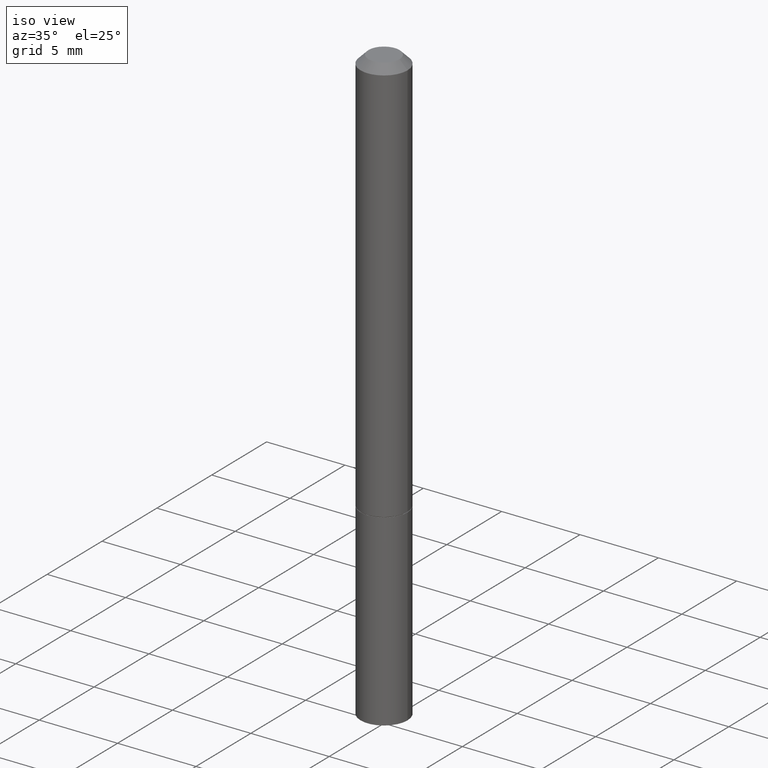
[diagram: clean part render]
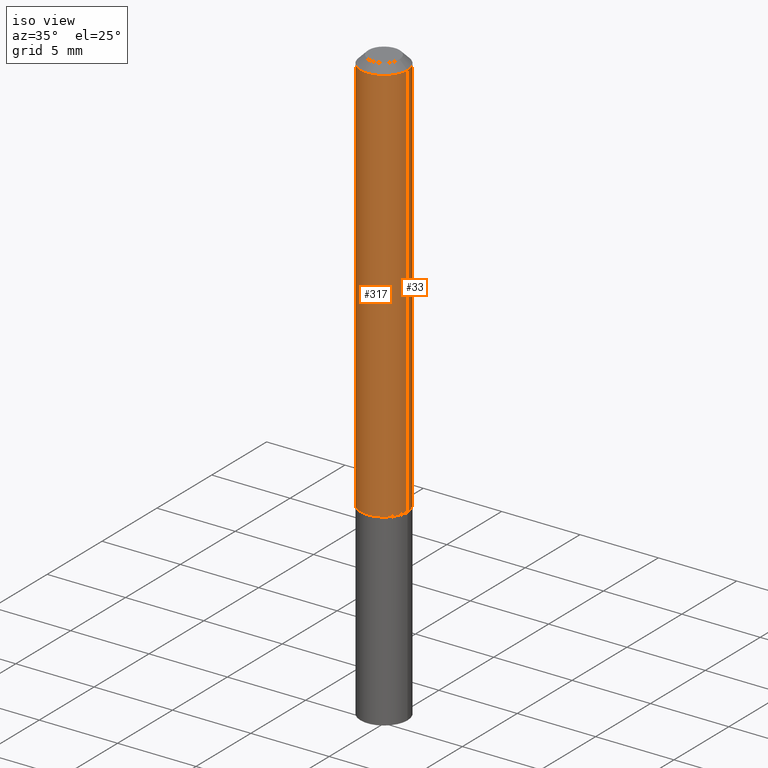
[diagram: same view with one multi-face feature highlighted, each face labeled with its STEP entity id]
A machine part, iso view. The highlighted faces form ONE feature: a constant-radius fillet chain: 2 tangent blend faces with common blend radius 1.4999 mm. The faces share edges in the B-rep.
Their STEP definitions:
[1] entity #33 (Cylinder):
#15 = CARTESIAN_POINT ( 'NONE',  ( 0.000000000000000000, 0.000000000000000000, 0.000000000000000000 ) ) ;
#33 = ADVANCED_FACE ( 'NONE', ( #48 ), #305, .T. ) ;
#41 = CARTESIAN_POINT ( 'NONE',  ( 0.05904999999999988036, -4.123439461173731945E-16, 2.879382386107493914E-30 ) ) ;
#43 = CARTESIAN_POINT ( 'NONE',  ( -0.05904999999999981097, 3.425143193405095019E-16, -0.02000000000000007674 ) ) ;
#46 = DIRECTION ( 'NONE',  ( 1.000000000000000000, -6.982962677686266711E-15, 4.876176775795935232E-29 ) ) ;
#48 = FACE_OUTER_BOUND ( 'NONE', #295, .T. ) ;
#67 = CIRCLE ( 'NONE', #279, 0.05904999999999981097 ) ;
#80 = DIRECTION ( 'NONE',  ( 1.000000000000000000, -6.982962677686270655E-15, 0.000000000000000000 ) ) ;
#86 = CARTESIAN_POINT ( 'NONE',  ( 2.500980948085538461E-29, -3.570737965234883817E-15, -1.022699999999999720 ) ) ;
#95 = CARTESIAN_POINT ( 'NONE',  ( 0.05904999999999981097, -4.749420335452707859E-16, -0.02000000000000007674 ) ) ;
#113 = ORIENTED_EDGE ( 'NONE', *, *, #199, .T. ) ;
#123 = ORIENTED_EDGE ( 'NONE', *, *, #224, .T. ) ;
#134 = VECTOR ( 'NONE', #162, 39.37007874015748143 ) ;
#155 = CARTESIAN_POINT ( 'NONE',  ( -0.05904999999999994975, -1.400708310539532881E-15, -1.022699999999999720 ) ) ;
#157 = DIRECTION ( 'NONE',  ( 1.000000000000000000, -6.982962677686265922E-15, 0.000000000000000000 ) ) ;
#162 = DIRECTION ( 'NONE',  ( -2.445468806185136877E-29, 3.491481338843145188E-15, 1.000000000000000000 ) ) ;
#175 = ORIENTED_EDGE ( 'NONE', *, *, #289, .F. ) ;
#199 = EDGE_CURVE ( 'NONE', #292, #258, #235, .T. ) ;
#203 = CARTESIAN_POINT ( 'NONE',  ( 0.05904999999999994975, -3.983081911352257948E-15, -1.022699999999999720 ) ) ;
#219 = DIRECTION ( 'NONE',  ( -2.445468806185136597E-29, 3.491481338843145583E-15, 1.000000000000000000 ) ) ;
#224 = EDGE_CURVE ( 'NONE', #258, #353, #342, .T. ) ;
#227 = EDGE_CURVE ( 'NONE', #299, #353, #67, .T. ) ;
#228 = AXIS2_PLACEMENT_3D ( 'NONE', #86, #339, #80 ) ;
#235 = CIRCLE ( 'NONE', #228, 0.05904999999999994975 ) ;
#249 = CARTESIAN_POINT ( 'NONE',  ( -0.05904999999999988036, 4.195754854663383097E-16, -2.904631170795515936E-30 ) ) ;
#258 = VERTEX_POINT ( 'NONE', #155 ) ;
#279 = AXIS2_PLACEMENT_3D ( 'NONE', #307, #219, #157 ) ;
#287 = VECTOR ( 'NONE', #318, 39.37007874015748143 ) ;
#289 = EDGE_CURVE ( 'NONE', #292, #299, #296, .T. ) ;
#292 = VERTEX_POINT ( 'NONE', #203 ) ;
#295 = EDGE_LOOP ( 'NONE', ( #113, #123, #345, #175 ) ) ;
#296 = LINE ( 'NONE', #41, #287 ) ;
#299 = VERTEX_POINT ( 'NONE', #95 ) ;
#305 = CYLINDRICAL_SURFACE ( 'NONE', #315, 0.05904999999999988036 ) ;
#307 = CARTESIAN_POINT ( 'NONE',  ( 4.890937612370292426E-31, -6.982962677686317493E-17, -0.02000000000000007674 ) ) ;
#315 = AXIS2_PLACEMENT_3D ( 'NONE', #15, #360, #46 ) ;
#318 = DIRECTION ( 'NONE',  ( -2.445468806185136877E-29, 3.491481338843145188E-15, 1.000000000000000000 ) ) ;
#339 = DIRECTION ( 'NONE',  ( -2.445468806185136597E-29, 3.491481338843145583E-15, 1.000000000000000000 ) ) ;
#342 = LINE ( 'NONE', #249, #134 ) ;
#345 = ORIENTED_EDGE ( 'NONE', *, *, #227, .F. ) ;
#353 = VERTEX_POINT ( 'NONE', #43 ) ;
#360 = DIRECTION ( 'NONE',  ( -2.445468806185136597E-29, 3.491481338843145583E-15, 1.000000000000000000 ) ) ;
[2] entity #317 (Cylinder):
#7 = CIRCLE ( 'NONE', #202, 0.05904999999999981097 ) ;
#14 = ORIENTED_EDGE ( 'NONE', *, *, #39, .F. ) ;
#39 = EDGE_CURVE ( 'NONE', #353, #299, #7, .T. ) ;
#41 = CARTESIAN_POINT ( 'NONE',  ( 0.05904999999999988036, -4.123439461173731945E-16, 2.879382386107493914E-30 ) ) ;
#43 = CARTESIAN_POINT ( 'NONE',  ( -0.05904999999999981097, 3.425143193405095019E-16, -0.02000000000000007674 ) ) ;
#44 = ORIENTED_EDGE ( 'NONE', *, *, #289, .T. ) ;
#70 = DIRECTION ( 'NONE',  ( 1.000000000000000000, -6.982962677686266711E-15, 4.876176775795935232E-29 ) ) ;
#78 = CARTESIAN_POINT ( 'NONE',  ( 2.500980948085538461E-29, -3.570737965234883817E-15, -1.022699999999999720 ) ) ;
#95 = CARTESIAN_POINT ( 'NONE',  ( 0.05904999999999981097, -4.749420335452707859E-16, -0.02000000000000007674 ) ) ;
#134 = VECTOR ( 'NONE', #162, 39.37007874015748143 ) ;
#147 = AXIS2_PLACEMENT_3D ( 'NONE', #233, #268, #70 ) ;
#155 = CARTESIAN_POINT ( 'NONE',  ( -0.05904999999999994975, -1.400708310539532881E-15, -1.022699999999999720 ) ) ;
#162 = DIRECTION ( 'NONE',  ( -2.445468806185136877E-29, 3.491481338843145188E-15, 1.000000000000000000 ) ) ;
#188 = AXIS2_PLACEMENT_3D ( 'NONE', #78, #214, #283 ) ;
#193 = EDGE_CURVE ( 'NONE', #258, #292, #301, .T. ) ;
#198 = FACE_OUTER_BOUND ( 'NONE', #207, .T. ) ;
#202 = AXIS2_PLACEMENT_3D ( 'NONE', #208, #362, #330 ) ;
#203 = CARTESIAN_POINT ( 'NONE',  ( 0.05904999999999994975, -3.983081911352257948E-15, -1.022699999999999720 ) ) ;
#207 = EDGE_LOOP ( 'NONE', ( #263, #288, #44, #14 ) ) ;
#208 = CARTESIAN_POINT ( 'NONE',  ( 4.890937612370292426E-31, -6.982962677686317493E-17, -0.02000000000000007674 ) ) ;
#214 = DIRECTION ( 'NONE',  ( -2.445468806185136597E-29, 3.491481338843145583E-15, 1.000000000000000000 ) ) ;
#224 = EDGE_CURVE ( 'NONE', #258, #353, #342, .T. ) ;
#233 = CARTESIAN_POINT ( 'NONE',  ( 0.000000000000000000, 0.000000000000000000, 0.000000000000000000 ) ) ;
#249 = CARTESIAN_POINT ( 'NONE',  ( -0.05904999999999988036, 4.195754854663383097E-16, -2.904631170795515936E-30 ) ) ;
#258 = VERTEX_POINT ( 'NONE', #155 ) ;
#261 = CYLINDRICAL_SURFACE ( 'NONE', #147, 0.05904999999999988036 ) ;
#263 = ORIENTED_EDGE ( 'NONE', *, *, #224, .F. ) ;
#268 = DIRECTION ( 'NONE',  ( -2.445468806185136597E-29, 3.491481338843145583E-15, 1.000000000000000000 ) ) ;
#283 = DIRECTION ( 'NONE',  ( 1.000000000000000000, -6.982962677686270655E-15, 0.000000000000000000 ) ) ;
#287 = VECTOR ( 'NONE', #318, 39.37007874015748143 ) ;
#288 = ORIENTED_EDGE ( 'NONE', *, *, #193, .T. ) ;
#289 = EDGE_CURVE ( 'NONE', #292, #299, #296, .T. ) ;
#292 = VERTEX_POINT ( 'NONE', #203 ) ;
#296 = LINE ( 'NONE', #41, #287 ) ;
#299 = VERTEX_POINT ( 'NONE', #95 ) ;
#301 = CIRCLE ( 'NONE', #188, 0.05904999999999994975 ) ;
#317 = ADVANCED_FACE ( 'NONE', ( #198 ), #261, .T. ) ;
#318 = DIRECTION ( 'NONE',  ( -2.445468806185136877E-29, 3.491481338843145188E-15, 1.000000000000000000 ) ) ;
#330 = DIRECTION ( 'NONE',  ( 1.000000000000000000, -6.982962677686265922E-15, 0.000000000000000000 ) ) ;
#342 = LINE ( 'NONE', #249, #134 ) ;
#353 = VERTEX_POINT ( 'NONE', #43 ) ;
#362 = DIRECTION ( 'NONE',  ( -2.445468806185136597E-29, 3.491481338843145583E-15, 1.000000000000000000 ) ) ;